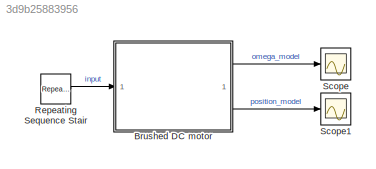
MODEL slx_3d9b25883956
KIND model
CONFIG AbsTol = auto
CONFIG EnableMultiTasking = off
CONFIG FixedStep = 0.01
CONFIG MaxStep = auto
CONFIG MinStep = auto
CONFIG RelTol = 1e-3
CONFIG SampleTimeConstraint = Unconstrained
CONFIG SolverName = FixedStepAuto
CONFIG StartTime = 0.0
CONFIG StopTime = 66
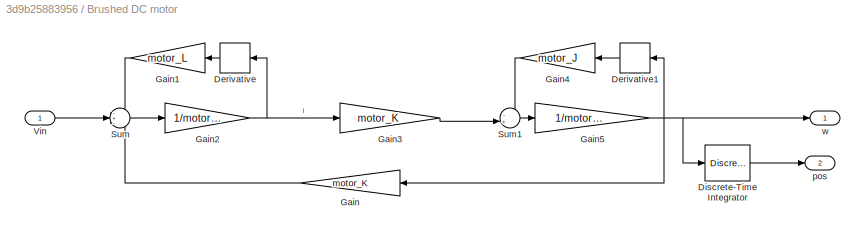
BLOCK [SubSystem] Brushed DC motor
BLOCK [Derivative] Brushed DC motor/Derivative
  NameLocation = top
BLOCK [Derivative] Brushed DC motor/Derivative1
  NameLocation = top
BLOCK [DiscreteIntegrator] Brushed DC motor/Discrete-Time Integrator
  ICPrevOutput = DiscIntNeverNeededParam
  ICPrevScaledInput = DiscIntNeverNeededParam
  InitialConditionSetting = Auto
  SampleTime = -1
BLOCK [Gain] Brushed DC motor/Gain
  Gain = motor_K
  NameLocation = top
BLOCK [Gain] Brushed DC motor/Gain1
  Gain = motor_L
  NameLocation = top
BLOCK [Gain] Brushed DC motor/Gain2
  Gain = 1/motor_R
BLOCK [Gain] Brushed DC motor/Gain3
  Gain = motor_K
BLOCK [Gain] Brushed DC motor/Gain4
  Gain = motor_J
  NameLocation = top
BLOCK [Gain] Brushed DC motor/Gain5
  Gain = 1/motor_B
BLOCK [Sum] Brushed DC motor/Sum
  Inputs = -+-
BLOCK [Sum] Brushed DC motor/Sum1
  Inputs = -+|
BLOCK [Inport] Brushed DC motor/Vin
BLOCK [Outport] Brushed DC motor/pos
  Port = 2
BLOCK [Outport] Brushed DC motor/w
BLOCK [Reference] Repeating Sequence Stair  REF=simulink/Sources/Repeating
Sequence
Stair
  SourceBlock = simulink/Sources/Repeating\nSequence\nStair
  SourceType = Repeating Sequence Stair
BLOCK [Scope] Scope
  Floating = off
  NumInputPorts = 1
  ScopeSpecificationString = Simulink.scopes.TimeScopeBlockCfg('CurrentConfiguration', extmgr.ConfigurationSet(extmgr.Configuration('Core','General UI',true),extmgr.Configuration('Core','Source UI',true),extmgr.Configuration('Sources','WiredSimulink',true),extmgr.Configuration('Visuals','Time Domain',true,'SerializedDisplays',{struct('MinYLimReal','-16.71024','MaxYLimReal','150.39219','YLabelReal','','MinYLimMag','0.00000','M...<+1341ch>
BLOCK [Scope] Scope1
  Floating = off
  NumInputPorts = 1
  ScopeSpecificationString = Simulink.scopes.TimeScopeBlockCfg('CurrentConfiguration', extmgr.ConfigurationSet(extmgr.Configuration('Core','General UI',true),extmgr.Configuration('Core','Source UI',true),extmgr.Configuration('Sources','WiredSimulink',true,'DataLoggingVariableName','ScopeData1'),extmgr.Configuration('Visuals','Time Domain',true,'SerializedDisplays',{struct('MinYLimReal','-313.31724','MaxYLimReal','2819.85519',...<+1391ch>
LINE Brushed DC motor/Derivative1:1 -> Brushed DC motor/Gain4:1
LINE Brushed DC motor/Derivative:1 -> Brushed DC motor/Gain1:1
LINE Brushed DC motor/Discrete-Time Integrator:1 -> Brushed DC motor/pos:1
LINE Brushed DC motor/Gain1:1 -> Brushed DC motor/Sum:1
NET Brushed DC motor/Gain2:1 -> Brushed DC motor/Derivative:1, Brushed DC motor/Gain3:1
LINE Brushed DC motor/Gain3:1 -> Brushed DC motor/Sum1:2
LINE Brushed DC motor/Gain4:1 -> Brushed DC motor/Sum1:1
NET Brushed DC motor/Gain5:1 -> Brushed DC motor/Derivative1:1, Brushed DC motor/Discrete-Time Integrator:1, Brushed DC motor/Gain:1, Brushed DC motor/w:1
LINE Brushed DC motor/Gain:1 -> Brushed DC motor/Sum:3
LINE Brushed DC motor/Sum1:1 -> Brushed DC motor/Gain5:1
LINE Brushed DC motor/Sum:1 -> Brushed DC motor/Gain2:1
LINE Brushed DC motor/Vin:1 -> Brushed DC motor/Sum:2
LINE Brushed DC motor:1 -> Scope:1
LINE Brushed DC motor:2 -> Scope1:1
LINE Repeating Sequence Stair:1 -> Brushed DC motor:1
note: NET lines group one-source signal fan-out (src -> all destinations, sorted); 1:1 wires keep LINE
